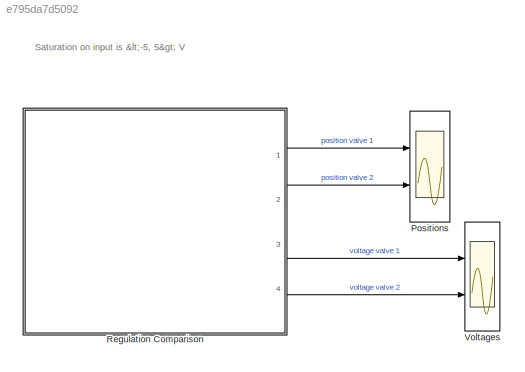
MODEL slx_e795da7d5092
KIND model
CONFIG AbsTol = auto
CONFIG EnableMultiTasking = off
CONFIG FixedStep = auto
CONFIG MaxStep = auto
CONFIG MinStep = auto
CONFIG RelTol = 1e-3
CONFIG SampleTimeConstraint = Unconstrained
CONFIG Solver = VariableStepAuto
CONFIG SolverName = VariableStepAuto
CONFIG StartTime = 0.0
CONFIG StopTime = 5
BLOCK [Scope] Positions
  Floating = off
  NumInputPorts = 2
  Ports = [2]
  ScopeSpecificationString = Simulink.scopes.TimeScopeBlockCfg('CurrentConfiguration', extmgr.ConfigurationSet(extmgr.Configuration('Core','General UI',true),extmgr.Configuration('Core','Source UI',true),extmgr.Configuration('Sources','WiredSimulink',true,'DataLoggingVariableName','ScopeData1'),extmgr.Configuration('Visuals','Time Domain',true,'SerializedDisplays',{struct('MinYLimReal','0.09106','MaxYLimReal','1.10099','YLabe...<+1522ch>
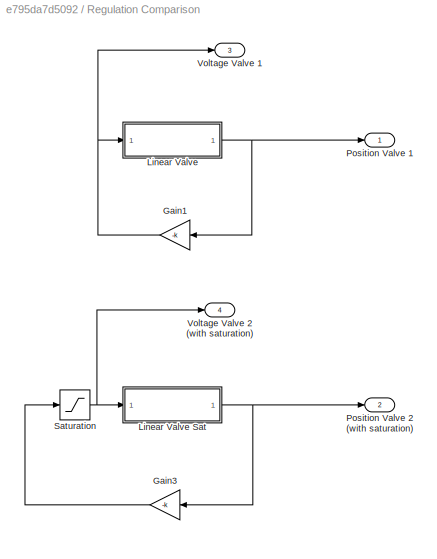
BLOCK [SubSystem] Regulation Comparison
  Ports = [0, 4]
  RequestExecContextInheritance = off
BLOCK [Gain] Regulation Comparison/Gain1
  Gain = -k
  OutDataTypeStr = Inherit: Inherit via internal rule
  ParamDataTypeStr = Inherit: Inherit via internal rule
  SaturateOnIntegerOverflow = off
BLOCK [Gain] Regulation Comparison/Gain3
  Gain = -k
  OutDataTypeStr = Inherit: Inherit via internal rule
  ParamDataTypeStr = Inherit: Inherit via internal rule
  SaturateOnIntegerOverflow = off
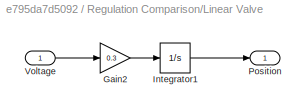
BLOCK [SubSystem] Regulation Comparison/Linear Valve
  Ports = [1, 1]
  RequestExecContextInheritance = off
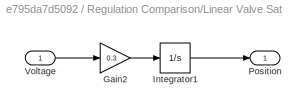
BLOCK [SubSystem] Regulation Comparison/Linear Valve Sat
  Ports = [1, 1]
  RequestExecContextInheritance = off
BLOCK [Gain] Regulation Comparison/Linear Valve Sat/Gain2
  Gain = 0.3
  OutDataTypeStr = Inherit: Inherit via internal rule
  ParamDataTypeStr = Inherit: Inherit via internal rule
  SaturateOnIntegerOverflow = off
BLOCK [Integrator] Regulation Comparison/Linear Valve Sat/Integrator1
  InitialCondition = 1
  LimitOutput = on
  LowerSaturationLimit = 0
  Ports = [1, 1]
  UpperSaturationLimit = 1
BLOCK [Outport] Regulation Comparison/Linear Valve Sat/Position
  IconDisplay = Port number
BLOCK [Inport] Regulation Comparison/Linear Valve Sat/Voltage
  IconDisplay = Port number
BLOCK [Gain] Regulation Comparison/Linear Valve/Gain2
  Gain = 0.3
  OutDataTypeStr = Inherit: Inherit via internal rule
  ParamDataTypeStr = Inherit: Inherit via internal rule
  SaturateOnIntegerOverflow = off
BLOCK [Integrator] Regulation Comparison/Linear Valve/Integrator1
  InitialCondition = 1
  LimitOutput = on
  LowerSaturationLimit = 0
  Ports = [1, 1]
  UpperSaturationLimit = 1
BLOCK [Outport] Regulation Comparison/Linear Valve/Position
  IconDisplay = Port number
BLOCK [Inport] Regulation Comparison/Linear Valve/Voltage
  IconDisplay = Port number
BLOCK [Outport] Regulation Comparison/Position Valve 1
  IconDisplay = Port number
BLOCK [Outport] Regulation Comparison/Position Valve 2 (with saturation)
  IconDisplay = Port number
  Port = 2
BLOCK [Saturate] Regulation Comparison/Saturation
  InputPortMap = u0
  LowerLimit = -5
  Ports = [1, 1]
  UpperLimit = 5
BLOCK [Outport] Regulation Comparison/Voltage Valve 1
  IconDisplay = Port number
  Port = 3
BLOCK [Outport] Regulation Comparison/Voltage Valve 2 (with saturation)
  IconDisplay = Port number
  Port = 4
BLOCK [Scope] Voltages
  Floating = off
  NumInputPorts = 2
  Ports = [2]
  ScopeSpecificationString = Simulink.scopes.TimeScopeBlockCfg('CurrentConfiguration', extmgr.ConfigurationSet(extmgr.Configuration('Core','General UI',true),extmgr.Configuration('Core','Source UI',true),extmgr.Configuration('Sources','WiredSimulink',true,'DataLoggingVariableName','ScopeData2'),extmgr.Configuration('Visuals','Time Domain',true,'SerializedDisplays',{struct('MinYLimReal','-1.21109','MaxYLimReal','-0.10016','YLa...<+1523ch>
ANNOTATION (root): Saturation on input is <-5, 5> V
NET Regulation Comparison/Gain1:1 -> Regulation Comparison/Linear Valve:1, Regulation Comparison/Voltage Valve 1:1
LINE Regulation Comparison/Gain3:1 -> Regulation Comparison/Saturation:1
LINE Regulation Comparison/Linear Valve Sat/Gain2:1 -> Regulation Comparison/Linear Valve Sat/Integrator1:1
LINE Regulation Comparison/Linear Valve Sat/Integrator1:1 -> Regulation Comparison/Linear Valve Sat/Position:1
LINE Regulation Comparison/Linear Valve Sat/Voltage:1 -> Regulation Comparison/Linear Valve Sat/Gain2:1
NET Regulation Comparison/Linear Valve Sat:1 -> Regulation Comparison/Gain3:1, Regulation Comparison/Position Valve 2 (with saturation):1
LINE Regulation Comparison/Linear Valve/Gain2:1 -> Regulation Comparison/Linear Valve/Integrator1:1
LINE Regulation Comparison/Linear Valve/Integrator1:1 -> Regulation Comparison/Linear Valve/Position:1
LINE Regulation Comparison/Linear Valve/Voltage:1 -> Regulation Comparison/Linear Valve/Gain2:1
NET Regulation Comparison/Linear Valve:1 -> Regulation Comparison/Gain1:1, Regulation Comparison/Position Valve 1:1
NET Regulation Comparison/Saturation:1 -> Regulation Comparison/Linear Valve Sat:1, Regulation Comparison/Voltage Valve 2 (with saturation):1
LINE Regulation Comparison:1 -> Positions:1
LINE Regulation Comparison:2 -> Positions:2
LINE Regulation Comparison:3 -> Voltages:1
LINE Regulation Comparison:4 -> Voltages:2
note: NET lines group one-source signal fan-out (src -> all destinations, sorted); 1:1 wires keep LINE
